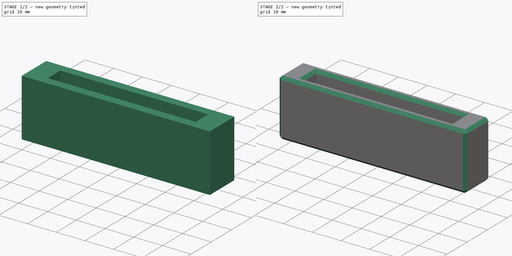
[diagram: build sequence overview — one tinted view per stage of 2, left to right]
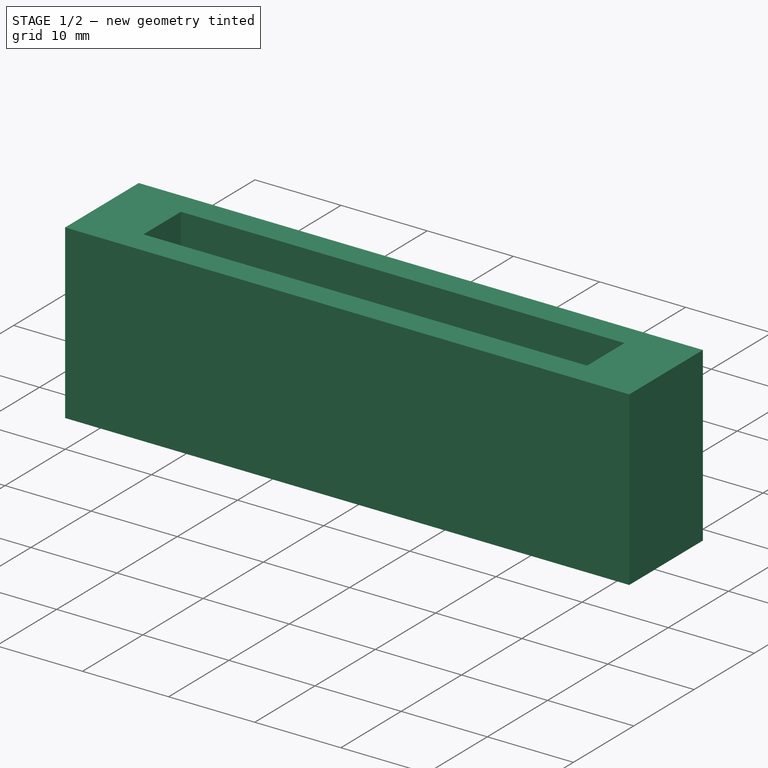
[diagram: stage 1 of 2 — iso view after this stage's code; geometry added in this stage tinted green]
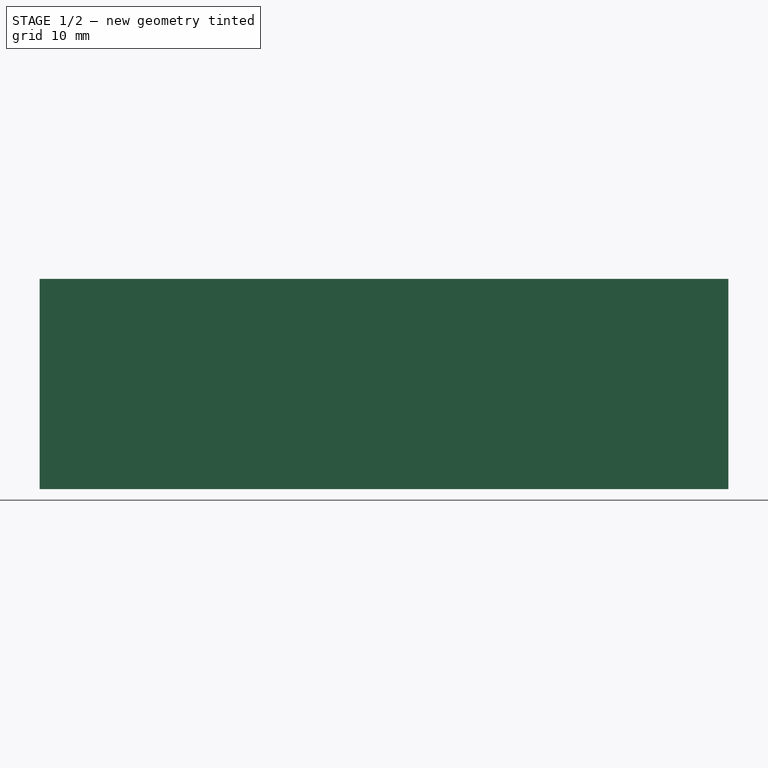
[diagram: stage 1 of 2 — front view after this stage's code; geometry added in this stage tinted green]
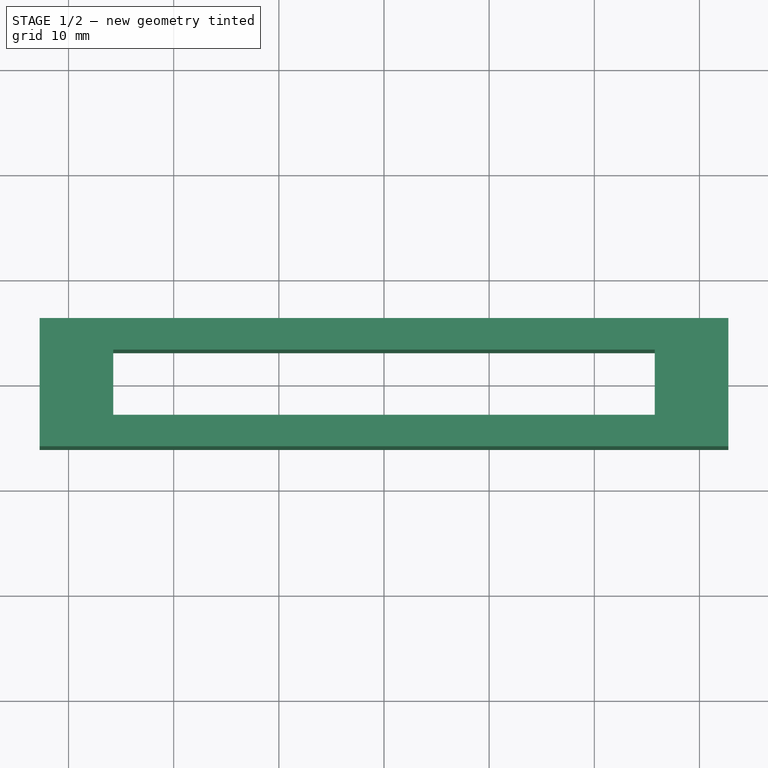
[diagram: stage 1 of 2 — top view after this stage's code; geometry added in this stage tinted green]
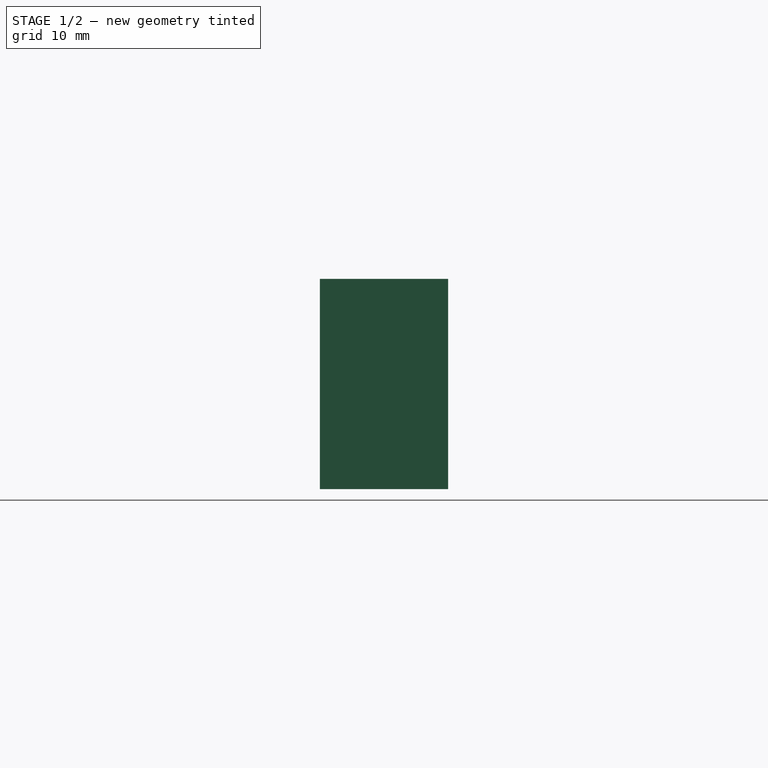
[diagram: stage 1 of 2 — right view after this stage's code; geometry added in this stage tinted green]
FCSTD DOCUMENT  (FreeCAD 0.20R29177 (Git))
Label: framing square slip
License: All rights reserved
LicenseURL: http://en.wikipedia.org/wiki/All_rights_reserved
objects: Sketcher::SketchObject×2, Spreadsheet::Sheet×1, PartDesign::Pad×1, PartDesign::Pocket×1, PartDesign::Chamfer×1, PartDesign::Body×1, App::Part×1
note: 9 computed .brp shape members not serialized (recipe doc carries the construction recipe); baked Part::Feature solids carry a one-line shape summary decoded from their .brp

FEATURE [Sketcher::SketchObject] Sketch
  FullyConstrained = true
  MapMode = 5
  Support = -> [XY_Plane001]
  expr: Constraints[10] = <<q>>.blade_thickness + 2 * <<q>>.walls
  expr: Constraints[9] = <<q>>.blade_height + 2 * <<q>>.end_walls
  sketch-geometry (4):
    g0: LineSegment StartX=-32.75 StartY=6.1 StartZ=0 EndX=32.75 EndY=6.1 EndZ=0
    g1: LineSegment StartX=32.75 StartY=6.1 StartZ=0 EndX=32.75 EndY=-6.1 EndZ=0
    g2: LineSegment StartX=32.75 StartY=-6.1 StartZ=0 EndX=-32.75 EndY=-6.1 EndZ=0
    g3: LineSegment StartX=-32.75 StartY=-6.1 StartZ=0 EndX=-32.75 EndY=6.1 EndZ=0
  constraints (11):
    c: Coincident(g0,g1)
    c: Coincident(g1,g2)
    c: Coincident(g2,g3)
    c: Coincident(g3,g0)
    c: Horizontal(g0)
    c: Horizontal(g2)
    c: Vertical(g1)
    c: Vertical(g3)
    c: Symmetric(g0,g1,g-1)
    c: DistanceX(g0,g0) = 65.5
    c: DistanceY(g1,g1) = 12.2
FEATURE [Spreadsheet::Sheet] Spreadsheet  label="q"
  cells = A2=walls; B2(walls)=3; A3=length; B3(length)=20; A4=blade height; B4(blade_height)=51.5; A5=blade thickness; B5(blade_thickness)=6.2; A6=side walls; B6(side_walls)=3; A7=end walls; B7(end_walls)=7; A8=insert diameter; B8(insert_diameter)=6; A9=insert offset; B9(insert_offset)=10
FEATURE [PartDesign::Pad] Pad
  Direction = (0,0,1)
  Length = 20
  Length2 = 10
  Profile = -> Sketch
  ReferenceAxis = -> Sketch [N_Axis]
  Type = 0
  expr: Length = <<q>>.length
FEATURE [Sketcher::SketchObject] Sketch001
  FullyConstrained = true
  MapMode = 5
  Placement = pos=(0,0,20) rot=(0,0,1;0rad)
  Support = -> [Pad]
  expr: Constraints[10] = <<q>>.blade_thickness
  expr: Constraints[9] = <<q>>.blade_height
  sketch-geometry (4):
    g0: LineSegment StartX=-25.75 StartY=3.1 StartZ=0 EndX=25.75 EndY=3.1 EndZ=0
    g1: LineSegment StartX=25.75 StartY=3.1 StartZ=0 EndX=25.75 EndY=-3.1 EndZ=0
    g2: LineSegment StartX=25.75 StartY=-3.1 StartZ=0 EndX=-25.75 EndY=-3.1 EndZ=0
    g3: LineSegment StartX=-25.75 StartY=-3.1 StartZ=0 EndX=-25.75 EndY=3.1 EndZ=0
  constraints (11):
    c: Coincident(g0,g1)
    c: Coincident(g1,g2)
    c: Coincident(g2,g3)
    c: Coincident(g3,g0)
    c: Horizontal(g0)
    c: Horizontal(g2)
    c: Vertical(g1)
    c: Vertical(g3)
    c: Symmetric(g0,g1,g-1)
    c: DistanceX(g0,g0) = 51.5
    c: DistanceY(g1,g1) = 6.2
FEATURE [PartDesign::Pocket] Pocket
  BaseFeature = -> Pad
  Direction = (0,0,-1)
  Length = 0
  Length2 = 5
  Profile = -> Sketch001
  ReferenceAxis = -> Sketch001 [N_Axis]
  Type = 3
  UpToFace = -> Pad [Face5]
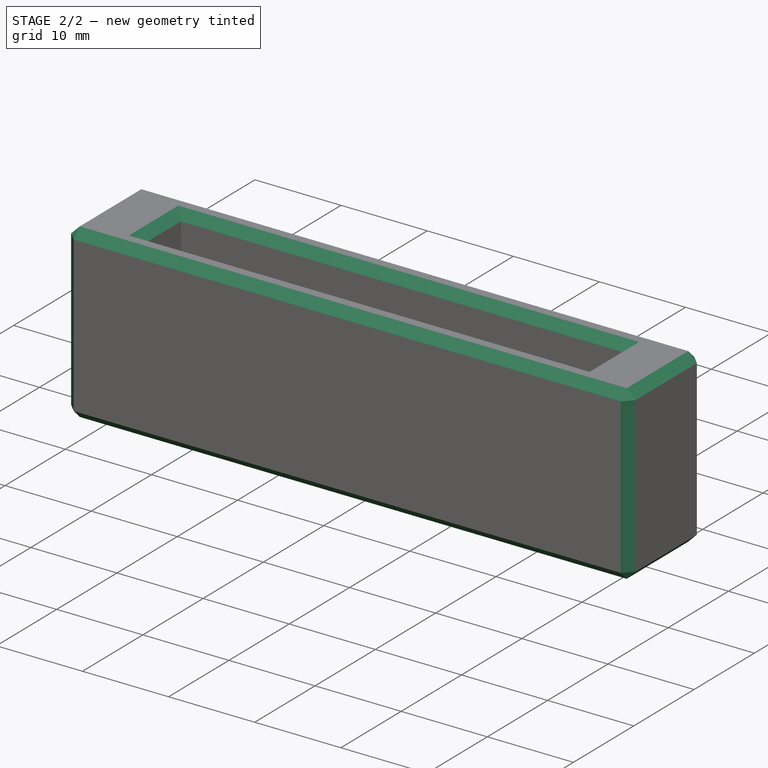
[diagram: stage 2 of 2 — iso view after this stage's code; geometry added in this stage tinted green]
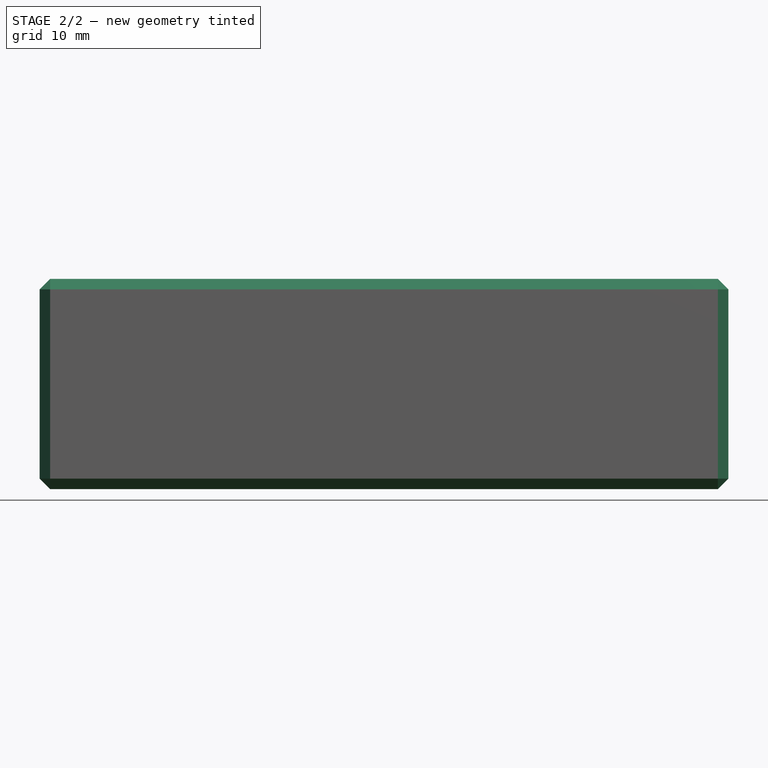
[diagram: stage 2 of 2 — front view after this stage's code; geometry added in this stage tinted green]
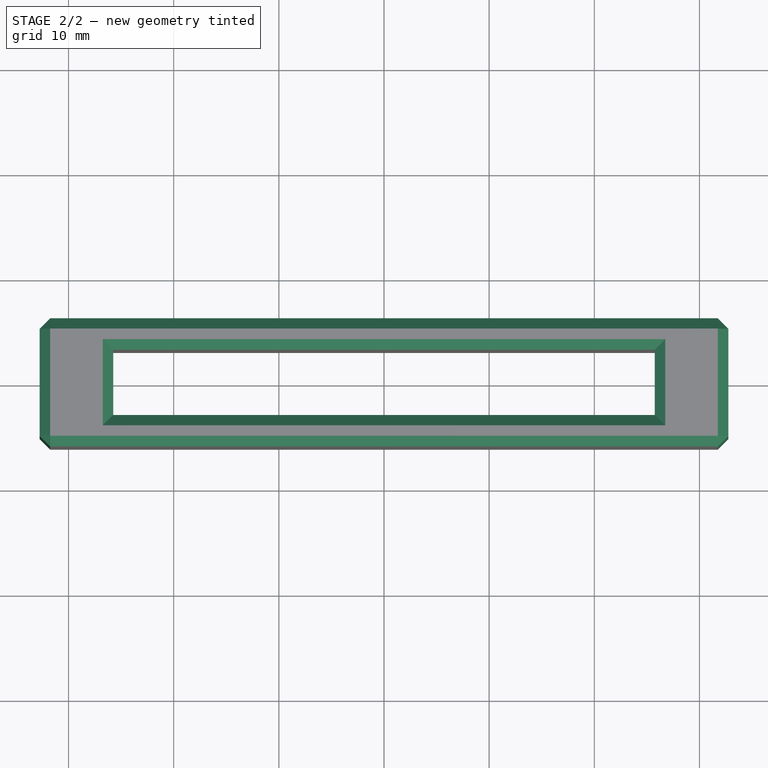
[diagram: stage 2 of 2 — top view after this stage's code; geometry added in this stage tinted green]
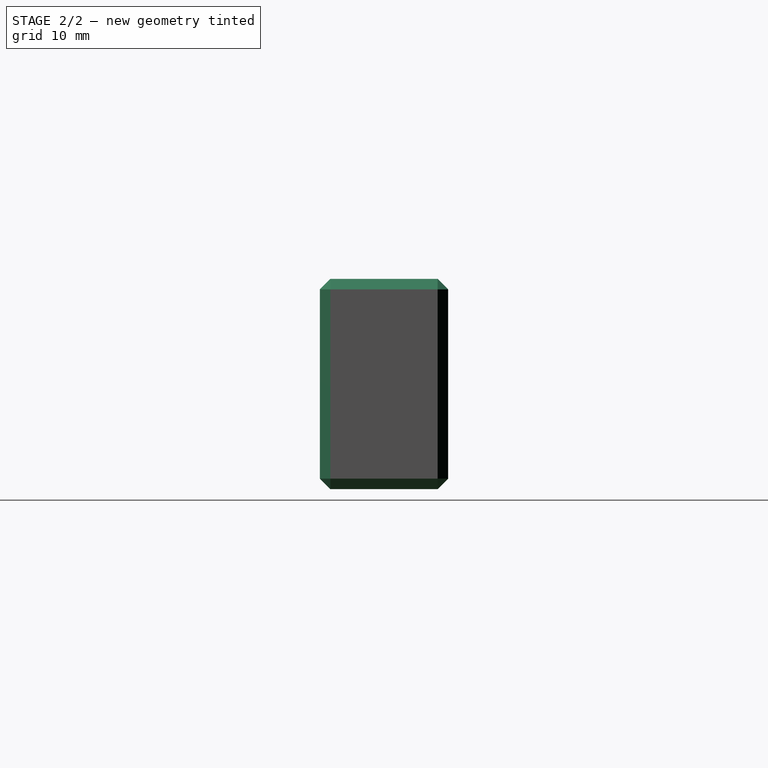
[diagram: stage 2 of 2 — right view after this stage's code; geometry added in this stage tinted green]
FEATURE [PartDesign::Chamfer] Chamfer
  Angle = 45
  Base = -> Pocket [Face6,Face1,Edge10,Face3,Face2,Face5,Face4]
  BaseFeature = -> Pocket
  ChamferType = 0
  FlipDirection = false
  Size = 1
  Size2 = 1
  SupportTransform = false
  UseAllEdges = false
FEATURE [PartDesign::Body] Body
  Group = -> [Sketch,Pad,Sketch001,Pocket,Chamfer]
  Origin = -> Origin001
  Tip = -> Chamfer
FEATURE [App::Part] Part
  Group = -> [Body]
  Origin = -> Origin
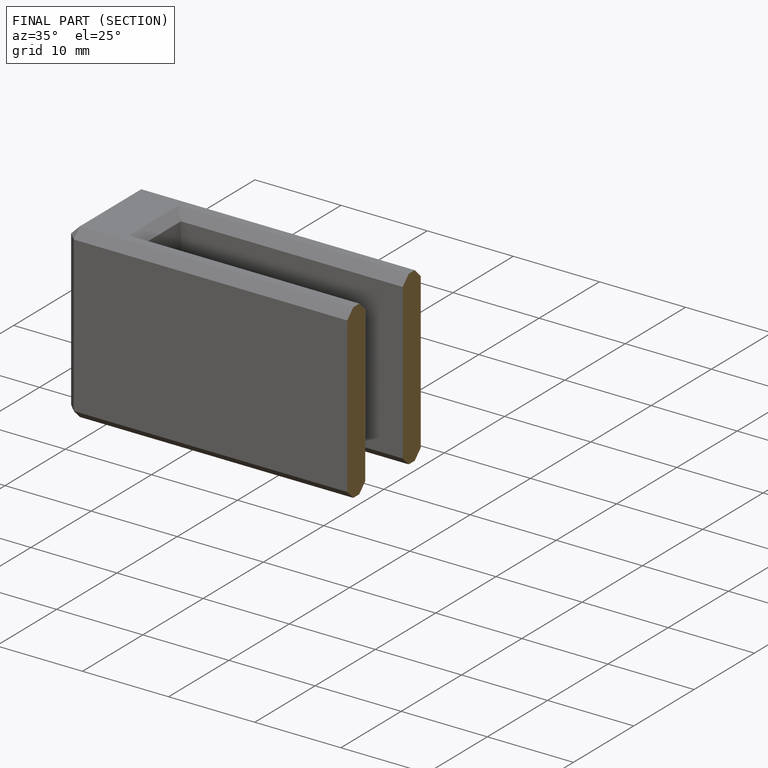
[diagram: finished part — half-section view (interior)]
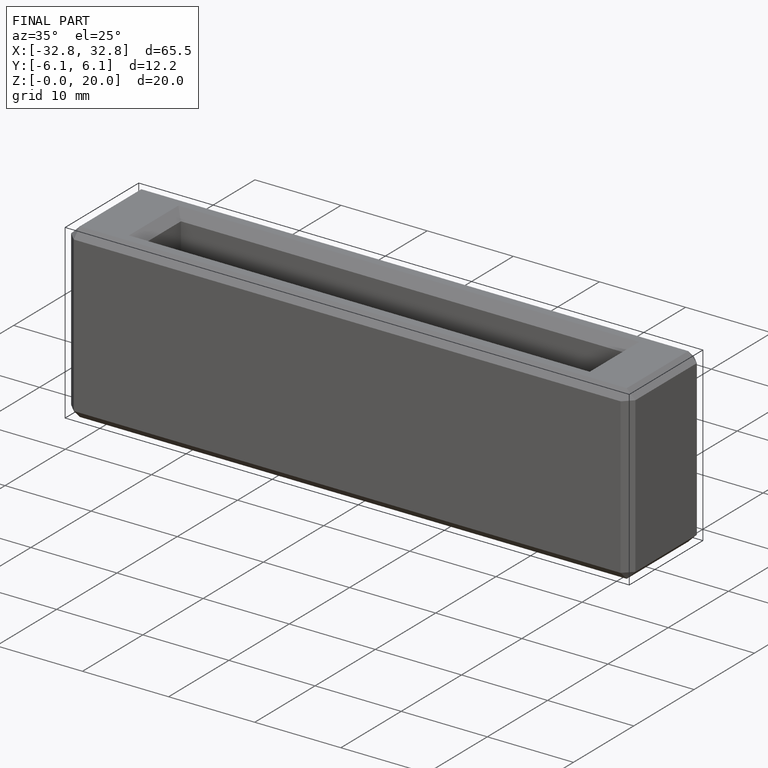
[diagram: finished part — iso view with bounding-box wireframe]
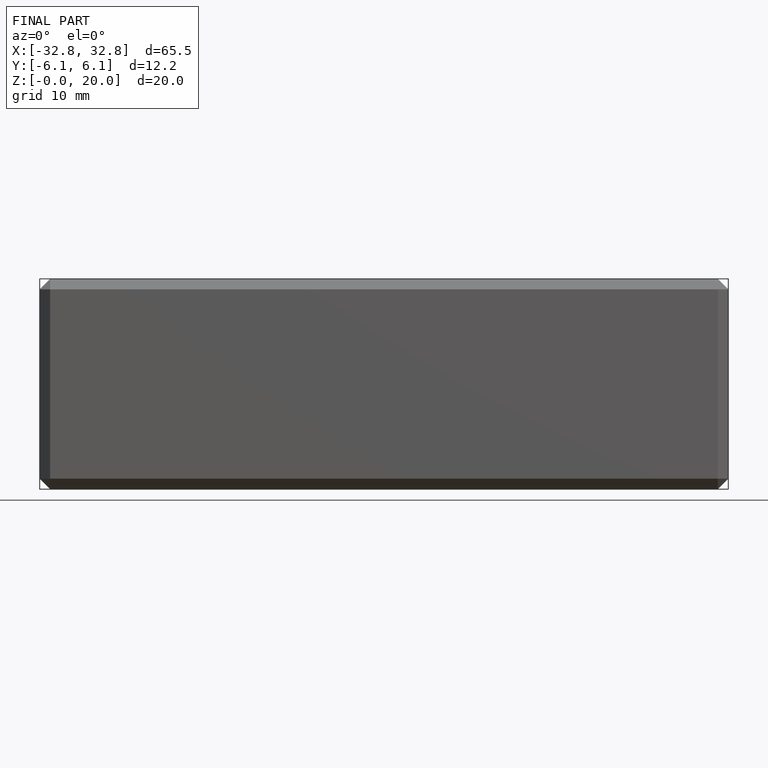
[diagram: finished part — front view with bounding-box wireframe]
